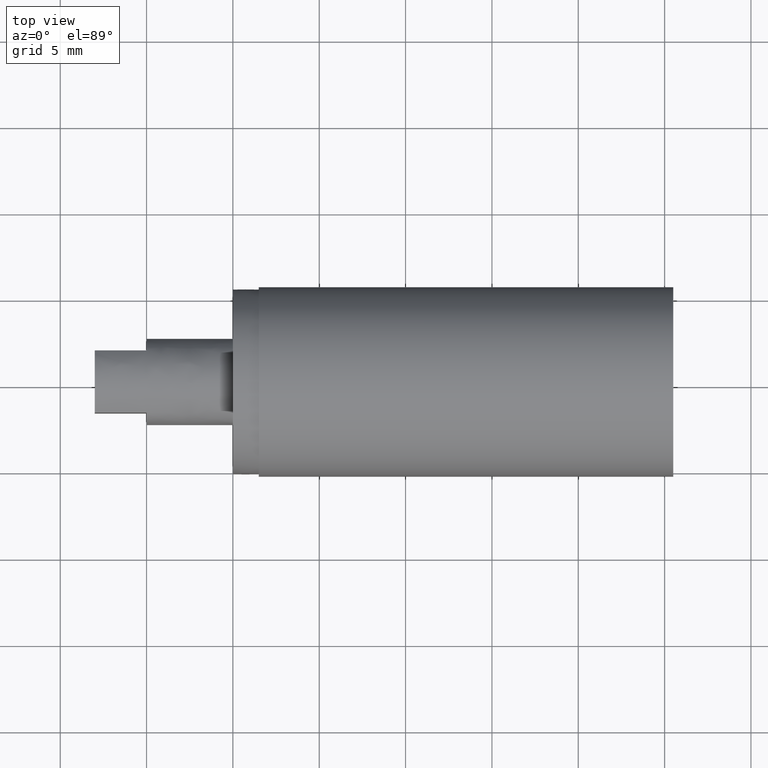
[diagram: clean part render]
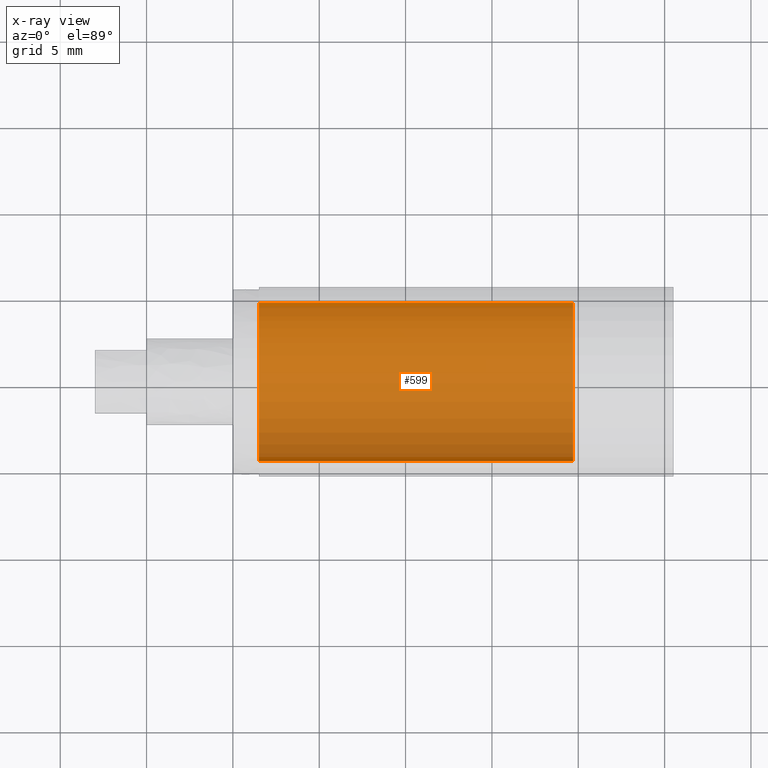
[diagram: x-ray — body ghosted, one internal face saturated and labeled with its STEP entity id]
A machine part, top view, then the same camera in x-ray: the body is ghosted and one INTERNAL B-rep face — a face not visible from any outside direction — is saturated and labeled: STEP entity #599.
In plain terms, the highlighted face is a freeform B-spline surface patch.
Its self-contained STEP definition (entity closure, byte-faithful):
#493=CARTESIAN_POINT('',(25.155000000000019,4.559786709602568,0.610741107338598));
#494=CARTESIAN_POINT('',(25.155000000000015,4.563826623882719,0.576753735983584));
#495=CARTESIAN_POINT('',(25.155000000000008,4.583383031063506,0.412227751734690));
#496=CARTESIAN_POINT('',(25.155000000000008,4.591420072740507,0.280823281860337));
#497=CARTESIAN_POINT('',(25.155000000000012,4.872243354600845,-4.310596790880171));
#498=CARTESIAN_POINT('',(25.155000000000008,0.280823281860337,-4.591420072740507));
#499=CARTESIAN_POINT('',(25.155000000000012,-4.310596790880171,-4.872243354600845));
#500=CARTESIAN_POINT('',(25.154999999999998,-4.593439681646318,-0.247802968132063));
#501=CARTESIAN_POINT('',(25.155000000000015,-4.595447293792712,-0.214978799686532));
#502=CARTESIAN_POINT('',(6.033625000000001,4.559786709602568,0.610741107338598));
#503=CARTESIAN_POINT('',(6.033625000000001,4.563826623882719,0.576753735983584));
#504=CARTESIAN_POINT('',(6.033625000000003,4.583383031063506,0.412227751734690));
#505=CARTESIAN_POINT('',(6.033625000000001,4.591420072740507,0.280823281860337));
#506=CARTESIAN_POINT('',(6.033625000000001,4.872243354600845,-4.310596790880171));
#507=CARTESIAN_POINT('',(6.033625000000001,0.280823281860337,-4.591420072740507));
#508=CARTESIAN_POINT('',(6.033625000000001,-4.310596790880171,-4.872243354600845));
#509=CARTESIAN_POINT('',(6.033624999999999,-4.593439681646318,-0.247802968132063));
#510=CARTESIAN_POINT('',(6.033625000000004,-4.595447293792712,-0.214978799686532));
#518=(BOUNDED_SURFACE()B_SPLINE_SURFACE(2,1,((#493,#502),(#494,#503),(#495,#504),(#496,#505),(#497,#506),(#498,#507),(#499,#508),(#500,#509),(#501,#510)),.UNSPECIFIED.,.F.,.F.,.U.)B_SPLINE_SURFACE_WITH_KNOTS((3,1,2,2,1,3),(2,2),(0.0,0.077734009241627,0.382595191148220,8.004124738813035,15.625654286477850,15.703401880891500),(0.0,19.121375000000011),.UNSPECIFIED.)GEOMETRIC_REPRESENTATION_ITEM()RATIONAL_B_SPLINE_SURFACE(((0.972009176288769,0.972009176288769),(0.974757488541948,0.974757488541948),(0.988284271247462,0.988284271247462),(1.0,1.0),(0.707106781186548,0.707106781186548),(1.0,1.0),(0.707106781186548,0.707106781186548),(1.002987818001676,1.002987818001676),(1.005975636003351,1.005975636003351)))REPRESENTATION_ITEM('')SURFACE());
#519=CARTESIAN_POINT('',(24.700000000000021,4.567844405730893,0.542952562391666));
#520=VERTEX_POINT('',#519);
#521=CARTESIAN_POINT('',(24.699999999999999,0.0,-4.599999999999910));
#522=VERTEX_POINT('',#521);
#523=CARTESIAN_POINT('',(24.700000000000017,4.567844405730893,0.542952562391666));
#524=CARTESIAN_POINT('',(24.699999999999992,4.599999999999909,0.272428465893369));
#525=CARTESIAN_POINT('',(24.699999999999999,4.599999999999910,0.0));
#526=CARTESIAN_POINT('',(24.699999999999999,4.599999999999910,-4.599999999999910));
#527=CARTESIAN_POINT('',(24.699999999999999,0.0,-4.599999999999910));
#535=(BOUNDED_CURVE()B_SPLINE_CURVE(2,(#523,#524,#525,#526,#527),.UNSPECIFIED.,.F.,.U.)B_SPLINE_CURVE_WITH_KNOTS((3,2,3),(0.229562655438239,0.250000000000000,0.500000000000000),.UNSPECIFIED.)CURVE()GEOMETRIC_REPRESENTATION_ITEM()RATIONAL_B_SPLINE_CURVE((0.956027110763927,0.976056161469225,1.0,0.707106781186547,1.0))REPRESENTATION_ITEM(''));
#536=EDGE_CURVE('',#520,#522,#535,.T.);
#537=ORIENTED_EDGE('',*,*,#536,.T.);
#538=CARTESIAN_POINT('',(24.699999999999982,-4.591420488702893,-0.280816480770048));
#539=VERTEX_POINT('',#538);
#540=CARTESIAN_POINT('',(24.699999999999999,0.0,-4.599999999999910));
#541=CARTESIAN_POINT('',(24.699999999999999,-4.327254329530313,-4.599999999999909));
#542=CARTESIAN_POINT('',(24.699999999999982,-4.591420488702893,-0.280816480770048));
#550=(BOUNDED_CURVE()B_SPLINE_CURVE(2,(#540,#541,#542),.UNSPECIFIED.,.F.,.U.)B_SPLINE_CURVE_WITH_KNOTS((3,3),(0.500000000000000,0.739333217828802),.UNSPECIFIED.)CURVE()GEOMETRIC_REPRESENTATION_ITEM()RATIONAL_B_SPLINE_CURVE((1.0,0.719603693844564,0.976072589445052))REPRESENTATION_ITEM(''));
#551=EDGE_CURVE('',#522,#539,#550,.T.);
#552=ORIENTED_EDGE('',*,*,#551,.T.);
#553=CARTESIAN_POINT('',(6.500000000000000,-4.591420483697185,-0.280816562616687));
#554=VERTEX_POINT('',#553);
#555=CARTESIAN_POINT('',(24.699999999999982,-4.591420488702893,-0.280816480770048));
#556=CARTESIAN_POINT('',(6.500000000000000,-4.591420483697185,-0.280816562616687));
#557=QUASI_UNIFORM_CURVE('',1,(#555,#556),.UNSPECIFIED.,.F.,.U.);
#558=EDGE_CURVE('',#539,#554,#557,.T.);
#559=ORIENTED_EDGE('',*,*,#558,.T.);
#560=CARTESIAN_POINT('',(6.500000000000000,0.0,-4.599999999999920));
#561=VERTEX_POINT('',#560);
#562=CARTESIAN_POINT('',(6.500000000000000,0.0,-4.599999999999920));
#563=CARTESIAN_POINT('',(6.500000000000000,-4.327254252248577,-4.599999999999919));
#564=CARTESIAN_POINT('',(6.500000000000000,-4.591420483697186,-0.280816562616687));
#572=(BOUNDED_CURVE()B_SPLINE_CURVE(2,(#562,#563,#564),.UNSPECIFIED.,.F.,.U.)B_SPLINE_CURVE_WITH_KNOTS((3,3),(0.500000000000000,0.739333214752983),.UNSPECIFIED.)CURVE()GEOMETRIC_REPRESENTATION_ITEM()RATIONAL_B_SPLINE_CURVE((1.0,0.719603697448110,0.976072582852970))REPRESENTATION_ITEM(''));
#573=EDGE_CURVE('',#561,#554,#572,.T.);
#574=ORIENTED_EDGE('',*,*,#573,.F.);
#575=CARTESIAN_POINT('',(6.499999999999998,4.567844398680361,0.542952621708170));
#576=VERTEX_POINT('',#575);
#577=CARTESIAN_POINT('',(6.499999999999998,4.567844398680361,0.542952621708170));
#578=CARTESIAN_POINT('',(6.500000000000001,4.599999999999920,0.272428495865154));
#579=CARTESIAN_POINT('',(6.500000000000000,4.599999999999920,0.0));
#580=CARTESIAN_POINT('',(6.500000000000000,4.599999999999921,-4.599999999999921));
#581=CARTESIAN_POINT('',(6.500000000000000,0.0,-4.599999999999920));
#589=(BOUNDED_CURVE()B_SPLINE_CURVE(2,(#577,#578,#579,#580,#581),.UNSPECIFIED.,.F.,.U.)B_SPLINE_CURVE_WITH_KNOTS((3,2,3),(0.229562653243619,0.250000000000000,0.500000000000000),.UNSPECIFIED.)CURVE()GEOMETRIC_REPRESENTATION_ITEM()RATIONAL_B_SPLINE_CURVE((0.956027106462374,0.976056158898067,1.0,0.707106781186547,1.0))REPRESENTATION_ITEM(''));
#590=EDGE_CURVE('',#576,#561,#589,.T.);
#591=ORIENTED_EDGE('',*,*,#590,.F.);
#592=CARTESIAN_POINT('',(24.700000000000021,4.567844405730893,0.542952562391666));
#593=CARTESIAN_POINT('',(6.499999999999998,4.567844398680361,0.542952621708170));
#594=QUASI_UNIFORM_CURVE('',1,(#592,#593),.UNSPECIFIED.,.F.,.U.);
#595=EDGE_CURVE('',#520,#576,#594,.T.);
#596=ORIENTED_EDGE('',*,*,#595,.F.);
#597=EDGE_LOOP('',(#537,#552,#559,#574,#591,#596));
#598=FACE_OUTER_BOUND('',#597,.T.);
#599=ADVANCED_FACE('',(#598),#518,.T.);